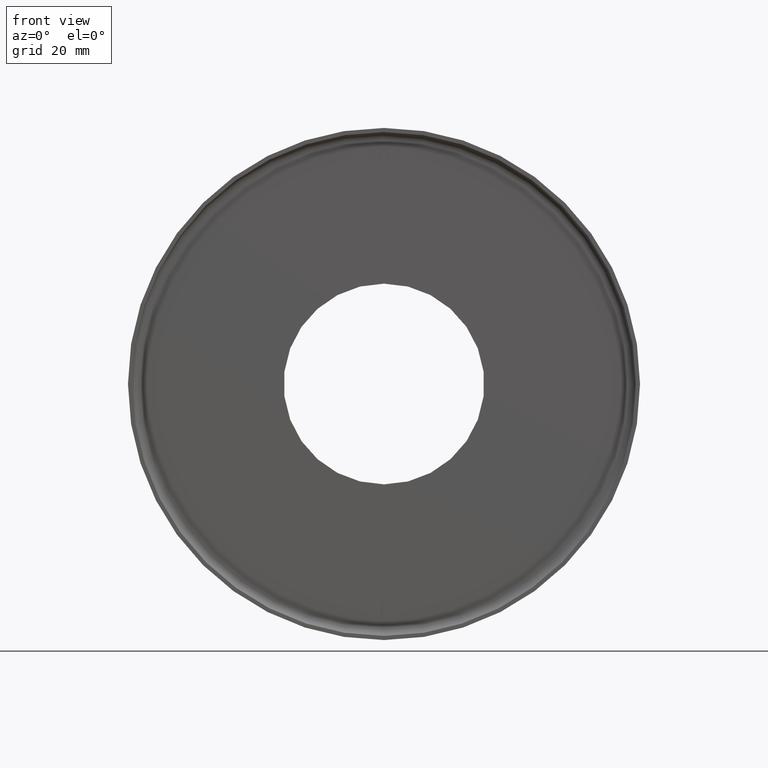
[diagram: clean part render]
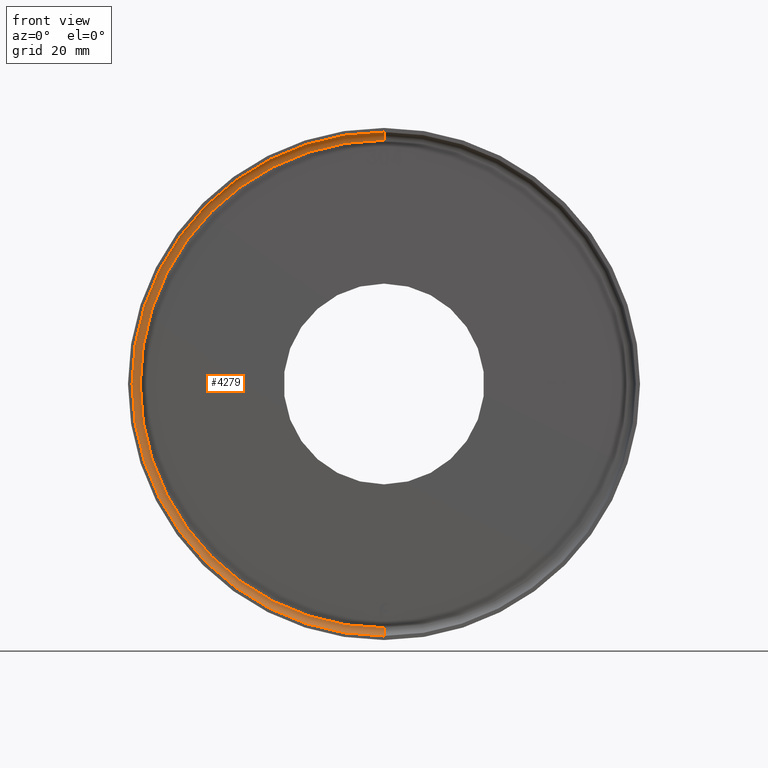
[diagram: same view with one face highlighted and labeled with its STEP entity id]
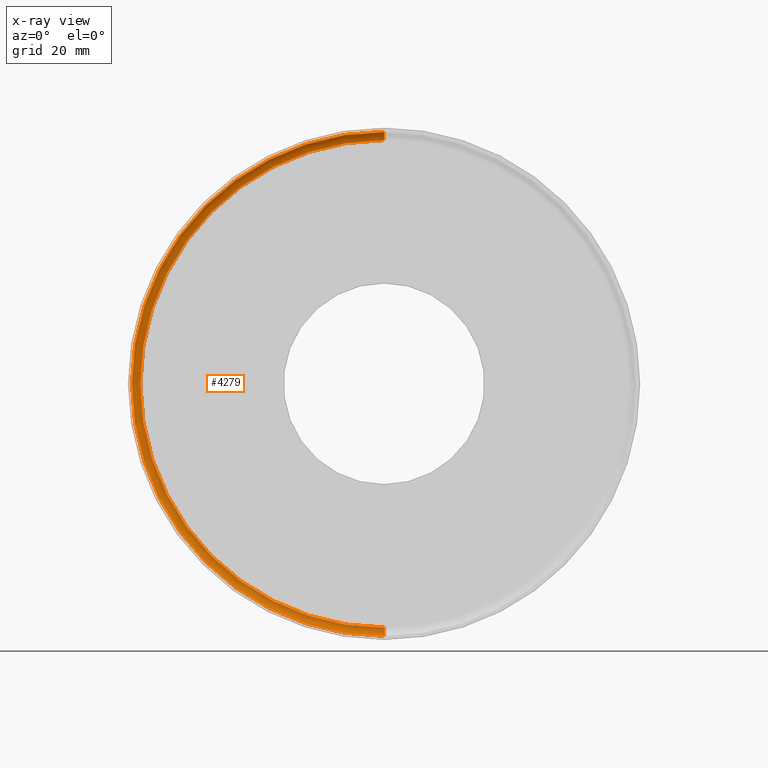
[diagram: x-ray of the same camera — body ghosted, the highlighted face saturated]
A machine part, front view. The second image highlights one B-rep face of the part: STEP entity #4279.
The next image is the same camera in x-ray: the body ghosted, the highlighted face saturated — about 0% of this face is hidden behind the body in this view.
In plain terms, the highlighted toroidal blend (fillet) surface has major radius 59.5 mm and minor (blend) radius 2 mm.
Its self-contained STEP definition (entity closure, byte-faithful):
#275 = CIRCLE ( 'NONE', #6378, 2.000000000000001776 ) ;
#1816 = VERTEX_POINT ( 'NONE', #8120 ) ;
#2539 = CARTESIAN_POINT ( 'NONE',  ( 7.531577814756222656E-15, 22.00000000000000355, 61.50000000000000000 ) ) ;
#2573 = CIRCLE ( 'NONE', #14586, 61.50000000000000000 ) ;
#2586 = EDGE_LOOP ( 'NONE', ( #10728, #13306, #3213, #15481 ) ) ;
#3213 = ORIENTED_EDGE ( 'NONE', *, *, #15804, .T. ) ;
#3240 = CARTESIAN_POINT ( 'NONE',  ( 0.000000000000000000, 24.00000000000000000, -59.50000000000000000 ) ) ;
#3677 = FACE_OUTER_BOUND ( 'NONE', #2586, .T. ) ;
#3822 = AXIS2_PLACEMENT_3D ( 'NONE', #4210, #14101, #9083 ) ;
#3919 = CARTESIAN_POINT ( 'NONE',  ( 0.000000000000000000, 24.00000000000000000, 0.000000000000000000 ) ) ;
#4210 = CARTESIAN_POINT ( 'NONE',  ( 0.000000000000000000, 22.00000000000000355, 0.000000000000000000 ) ) ;
#4279 = ADVANCED_FACE ( 'NONE', ( #3677 ), #11838, .F. ) ;
#5027 = CARTESIAN_POINT ( 'NONE',  ( 0.000000000000000000, 22.00000000000000355, 0.000000000000000000 ) ) ;
#5062 = CARTESIAN_POINT ( 'NONE',  ( 0.000000000000000000, 22.00000000000000355, -59.50000000000000000 ) ) ;
#5349 = DIRECTION ( 'NONE',  ( 0.000000000000000000, 0.000000000000000000, -1.000000000000000000 ) ) ;
#6378 = AXIS2_PLACEMENT_3D ( 'NONE', #5062, #13687, #7554 ) ;
#7103 = EDGE_CURVE ( 'NONE', #14701, #14434, #7166, .T. ) ;
#7166 = CIRCLE ( 'NONE', #14840, 2.000000000000001776 ) ;
#7328 = DIRECTION ( 'NONE',  ( 1.000000000000000000, 0.000000000000000000, -1.224646799147353207E-16 ) ) ;
#7554 = DIRECTION ( 'NONE',  ( 0.000000000000000000, 0.000000000000000000, 1.000000000000000000 ) ) ;
#8120 = CARTESIAN_POINT ( 'NONE',  ( 0.000000000000000000, 22.00000000000000355, -61.50000000000000000 ) ) ;
#8559 = DIRECTION ( 'NONE',  ( -1.224646799147349509E-16, 0.000000000000000000, -1.000000000000000000 ) ) ;
#8769 = AXIS2_PLACEMENT_3D ( 'NONE', #3919, #11380, #5349 ) ;
#9083 = DIRECTION ( 'NONE',  ( 0.000000000000000000, 0.000000000000000000, -1.000000000000000000 ) ) ;
#10728 = ORIENTED_EDGE ( 'NONE', *, *, #16038, .F. ) ;
#11286 = DIRECTION ( 'NONE',  ( -0.000000000000000000, -1.000000000000000000, -0.000000000000000000 ) ) ;
#11380 = DIRECTION ( 'NONE',  ( -0.000000000000000000, -1.000000000000000000, -0.000000000000000000 ) ) ;
#11797 = VERTEX_POINT ( 'NONE', #3240 ) ;
#11838 = TOROIDAL_SURFACE ( 'NONE', #3822, 59.50000000000000000, 2.000000000000000000 ) ;
#13306 = ORIENTED_EDGE ( 'NONE', *, *, #7103, .T. ) ;
#13384 = CIRCLE ( 'NONE', #8769, 59.50000000000000000 ) ;
#13404 = EDGE_CURVE ( 'NONE', #11797, #1816, #275, .T. ) ;
#13656 = DIRECTION ( 'NONE',  ( 0.000000000000000000, 0.000000000000000000, -1.000000000000000000 ) ) ;
#13687 = DIRECTION ( 'NONE',  ( -1.000000000000000000, 0.000000000000000000, 0.000000000000000000 ) ) ;
#14101 = DIRECTION ( 'NONE',  ( -0.000000000000000000, -1.000000000000000000, -0.000000000000000000 ) ) ;
#14396 = CARTESIAN_POINT ( 'NONE',  ( 7.409113134841485930E-15, 24.00000000000000000, 59.50000000000000000 ) ) ;
#14434 = VERTEX_POINT ( 'NONE', #2539 ) ;
#14586 = AXIS2_PLACEMENT_3D ( 'NONE', #5027, #11286, #13656 ) ;
#14701 = VERTEX_POINT ( 'NONE', #14396 ) ;
#14731 = CARTESIAN_POINT ( 'NONE',  ( 7.286648454926750781E-15, 22.00000000000000355, 59.50000000000000000 ) ) ;
#14840 = AXIS2_PLACEMENT_3D ( 'NONE', #14731, #7328, #8559 ) ;
#15481 = ORIENTED_EDGE ( 'NONE', *, *, #13404, .F. ) ;
#15804 = EDGE_CURVE ( 'NONE', #14434, #1816, #2573, .T. ) ;
#16038 = EDGE_CURVE ( 'NONE', #14701, #11797, #13384, .T. ) ;